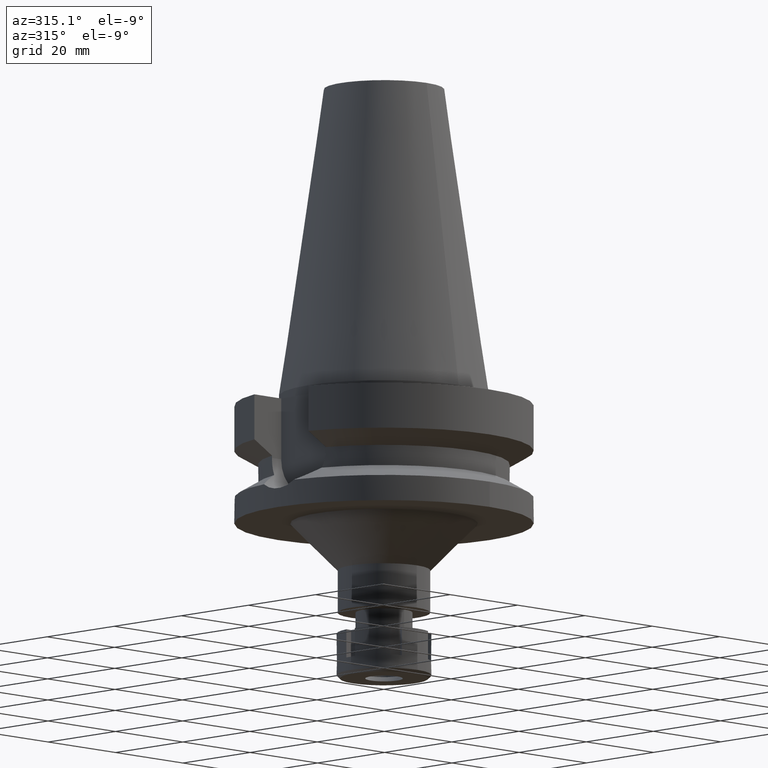
[diagram: clean part render]
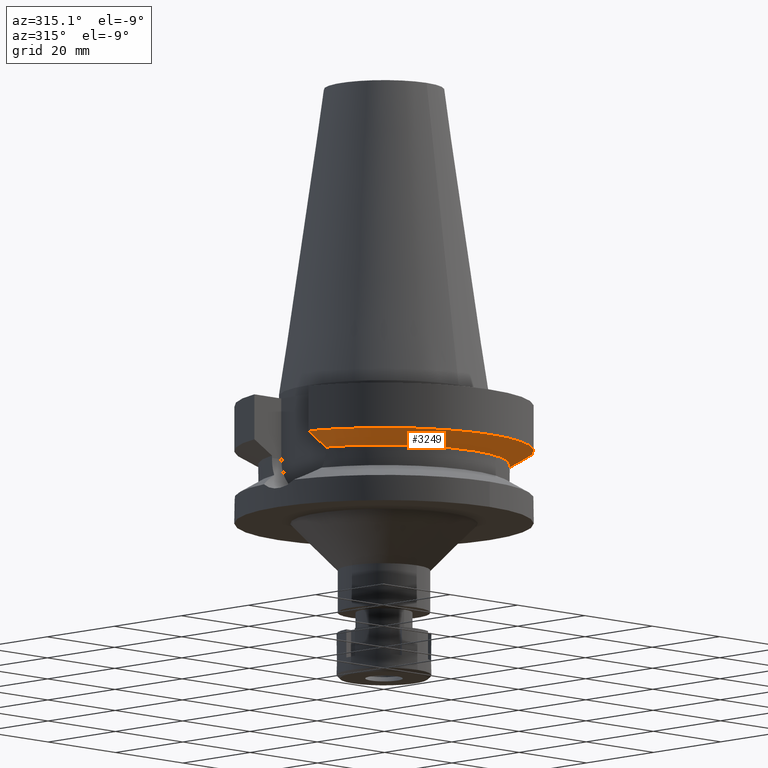
[diagram: same view with one face highlighted and labeled with its STEP entity id]
A machine part, auxiliary view. The second image highlights one B-rep face of the part: STEP entity #3249.
In plain terms, the highlighted conical surface has half-angle 60 deg.
Its self-contained STEP definition (entity closure, byte-faithful):
#4 = CONICAL_SURFACE ( 'NONE', #3227, 29.00000000000000000, 1.047197551196400456 ) ;
#11 = B_SPLINE_CURVE_WITH_KNOTS ( 'NONE', 3,
 ( #1598, #2702, #1079, #3194 ),
 .UNSPECIFIED., .F., .F.,
 ( 4, 4 ),
 ( 0.0000000000000000000, 1.000000000000000000 ),
 .UNSPECIFIED. ) ;
#125 = FACE_OUTER_BOUND ( 'NONE', #1312, .T. ) ;
#126 = CARTESIAN_POINT ( 'NONE',  ( 30.45402272279000044, -8.049999999999000622, -11.56550565266999975 ) ) ;
#145 = ORIENTED_EDGE ( 'NONE', *, *, #2585, .F. ) ;
#165 = VERTEX_POINT ( 'NONE', #2193 ) ;
#172 = AXIS2_PLACEMENT_3D ( 'NONE', #3050, #3094, #3064 ) ;
#346 = CIRCLE ( 'NONE', #587, 26.50000000000000711 ) ;
#369 = CARTESIAN_POINT ( 'NONE',  ( -30.45402291833999797, -8.049999260217997943, -11.56551231572000127 ) ) ;
#467 = ORIENTED_EDGE ( 'NONE', *, *, #3017, .F. ) ;
#587 = AXIS2_PLACEMENT_3D ( 'NONE', #2486, #3302, #1358 ) ;
#955 = CARTESIAN_POINT ( 'NONE',  ( 0.0000000000000000000, 1.065333950388000029E-14, -13.00888132564000088 ) ) ;
#1043 = CIRCLE ( 'NONE', #172, 31.50000000000000000 ) ;
#1079 = CARTESIAN_POINT ( 'NONE',  ( -26.83754562963891033, -8.049990725264642322, -13.57774918916766005 ) ) ;
#1312 = EDGE_LOOP ( 'NONE', ( #2377, #145, #1370, #467 ) ) ;
#1358 = DIRECTION ( 'NONE',  ( 0.9527442516822307583, -0.3037735849057093818, 0.0000000000000000000 ) ) ;
#1367 = EDGE_CURVE ( 'NONE', #3080, #165, #1601, .T. ) ;
#1370 = ORIENTED_EDGE ( 'NONE', *, *, #1367, .T. ) ;
#1598 = CARTESIAN_POINT ( 'NONE',  ( -30.45402291833999797, -8.049999260217997943, -11.56551231572000127 ) ) ;
#1601 = B_SPLINE_CURVE_WITH_KNOTS ( 'NONE', 3,
 ( #1784, #1709, #2315, #126 ),
 .UNSPECIFIED., .F., .F.,
 ( 4, 4 ),
 ( 0.0000000000000000000, 1.000000000000000000 ),
 .UNSPECIFIED. ) ;
#1658 = VERTEX_POINT ( 'NONE', #2743 ) ;
#1709 = CARTESIAN_POINT ( 'NONE',  ( 26.83757628975986265, -8.050003103714809427, -13.57773022134104579 ) ) ;
#1784 = CARTESIAN_POINT ( 'NONE',  ( 25.24772266958000344, -8.050000000000000711, -14.45225699861000024 ) ) ;
#1991 = EDGE_CURVE ( 'NONE', #2911, #1658, #11, .T. ) ;
#2089 = DIRECTION ( 'NONE',  ( 0.0000000000000000000, 0.0000000000000000000, 1.000000000000000000 ) ) ;
#2193 = CARTESIAN_POINT ( 'NONE',  ( 30.45402272279000044, -8.049999999999000622, -11.56550565266999975 ) ) ;
#2275 = CARTESIAN_POINT ( 'NONE',  ( 25.24772266958000344, -8.050000000000000711, -14.45225699861000024 ) ) ;
#2315 = CARTESIAN_POINT ( 'NONE',  ( 28.57294852499741822, -8.050008343769867736, -12.61548044712910155 ) ) ;
#2377 = ORIENTED_EDGE ( 'NONE', *, *, #1991, .T. ) ;
#2486 = CARTESIAN_POINT ( 'NONE',  ( 0.0000000000000000000, 1.065333950388000029E-14, -14.45225699861000024 ) ) ;
#2585 = EDGE_CURVE ( 'NONE', #3080, #1658, #346, .T. ) ;
#2702 = CARTESIAN_POINT ( 'NONE',  ( -28.57292277919698975, -8.049998521402912388, -12.61549634607490233 ) ) ;
#2743 = CARTESIAN_POINT ( 'NONE',  ( -25.24772414651999952, -8.049995367763999710, -14.45229239496999973 ) ) ;
#2911 = VERTEX_POINT ( 'NONE', #369 ) ;
#3017 = EDGE_CURVE ( 'NONE', #2911, #165, #1043, .T. ) ;
#3050 = CARTESIAN_POINT ( 'NONE',  ( 0.0000000000000000000, 1.065333950388000029E-14, -11.56550565266999975 ) ) ;
#3064 = DIRECTION ( 'NONE',  ( 0.0000000000000000000, -1.000000000000000000, 0.0000000000000000000 ) ) ;
#3080 = VERTEX_POINT ( 'NONE', #2275 ) ;
#3094 = DIRECTION ( 'NONE',  ( 0.0000000000000000000, 0.0000000000000000000, 1.000000000000000000 ) ) ;
#3194 = CARTESIAN_POINT ( 'NONE',  ( -25.24772414651999952, -8.049995367763999710, -14.45229239496999973 ) ) ;
#3227 = AXIS2_PLACEMENT_3D ( 'NONE', #955, #2089, #3472 ) ;
#3249 = ADVANCED_FACE ( 'NONE', ( #125 ), #4, .T. ) ;
#3302 = DIRECTION ( 'NONE',  ( 0.0000000000000000000, 0.0000000000000000000, -1.000000000000000000 ) ) ;
#3472 = DIRECTION ( 'NONE',  ( 0.0000000000000000000, 1.000000000000000000, 0.0000000000000000000 ) ) ;